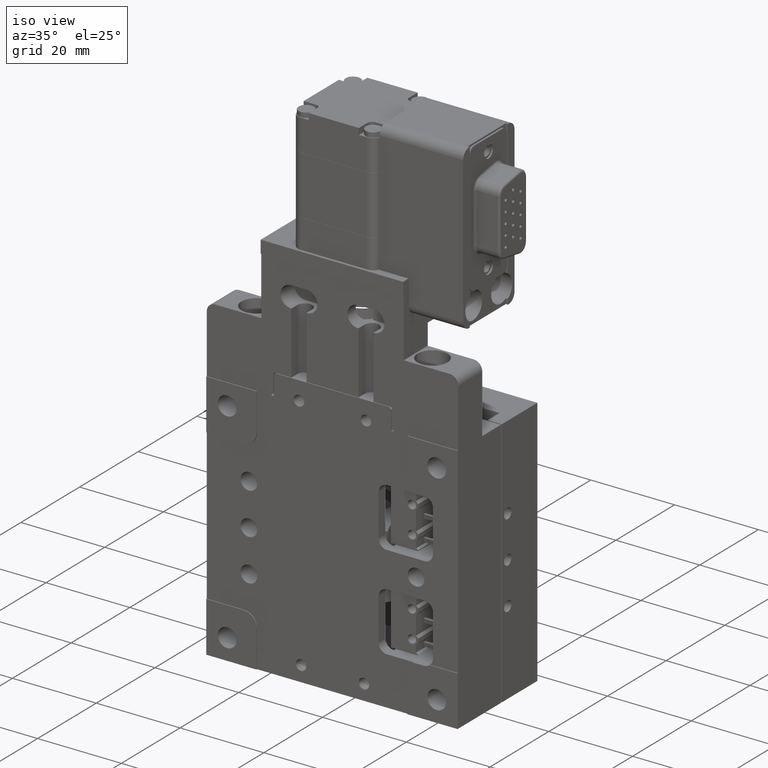
[diagram: clean part render]
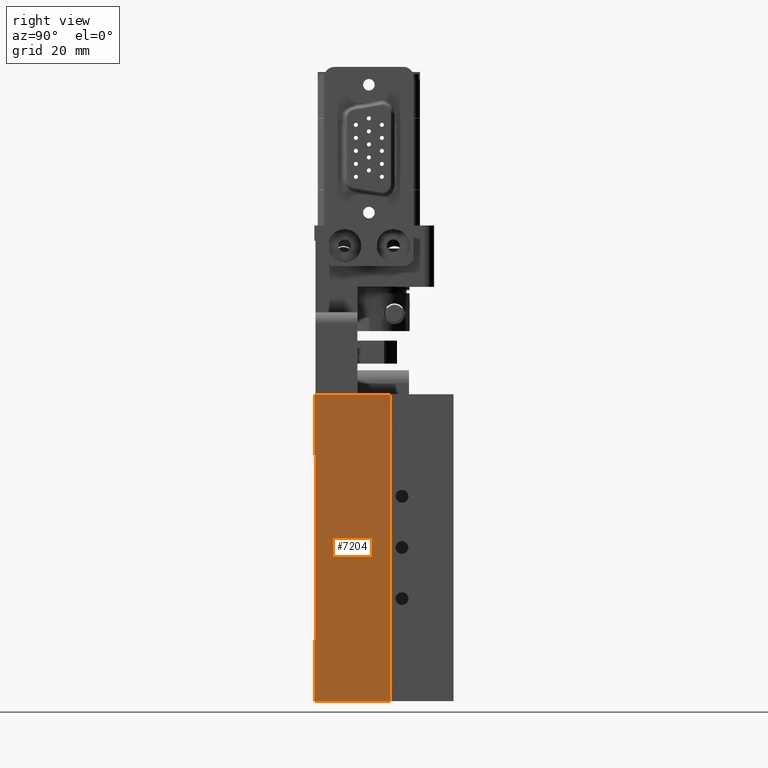
[diagram: tour spotlight — one face highlighted and labeled with its STEP entity id]
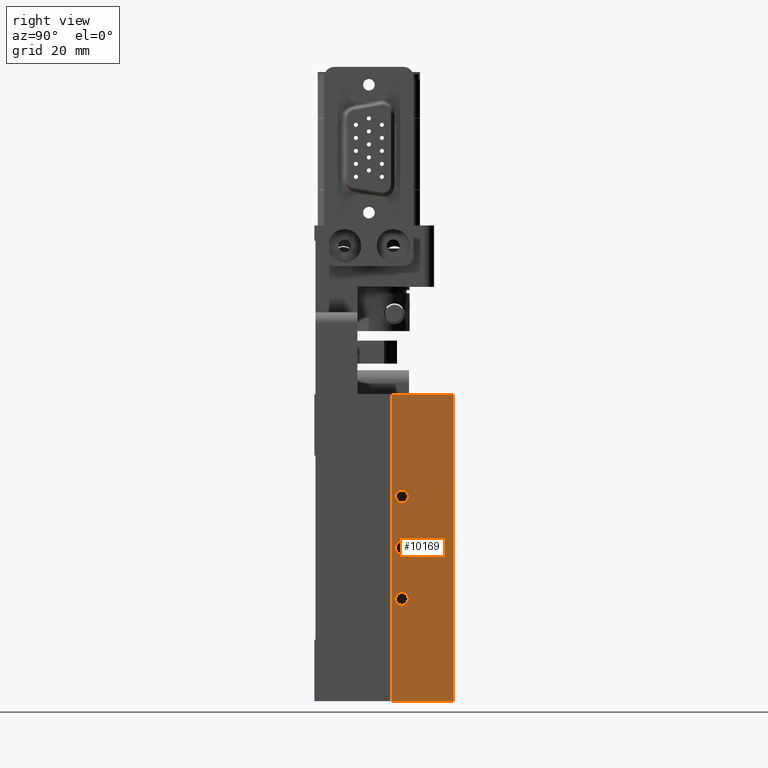
[diagram: tour spotlight — one face highlighted and labeled with its STEP entity id]
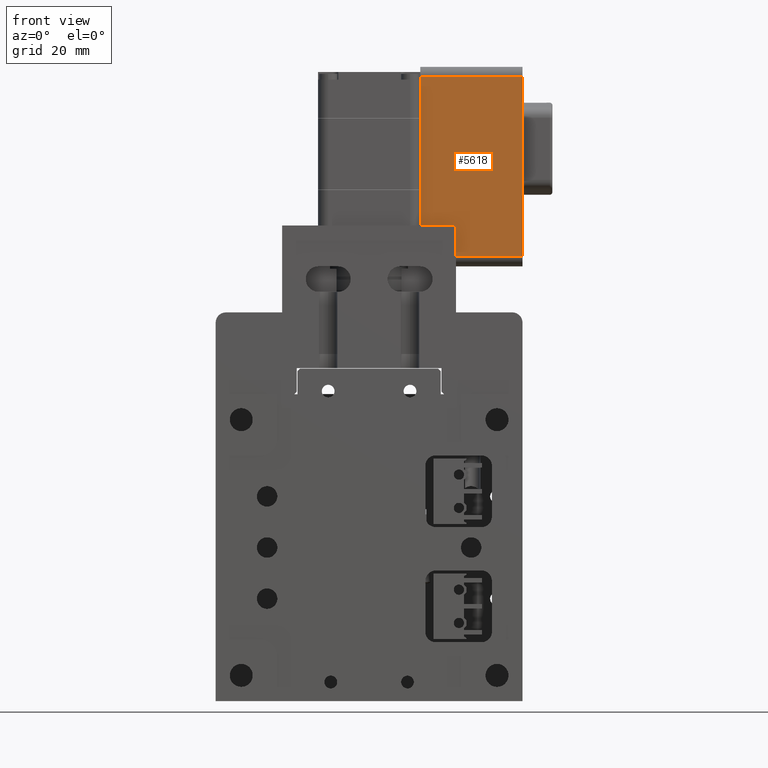
[diagram: tour spotlight — one face highlighted and labeled with its STEP entity id]
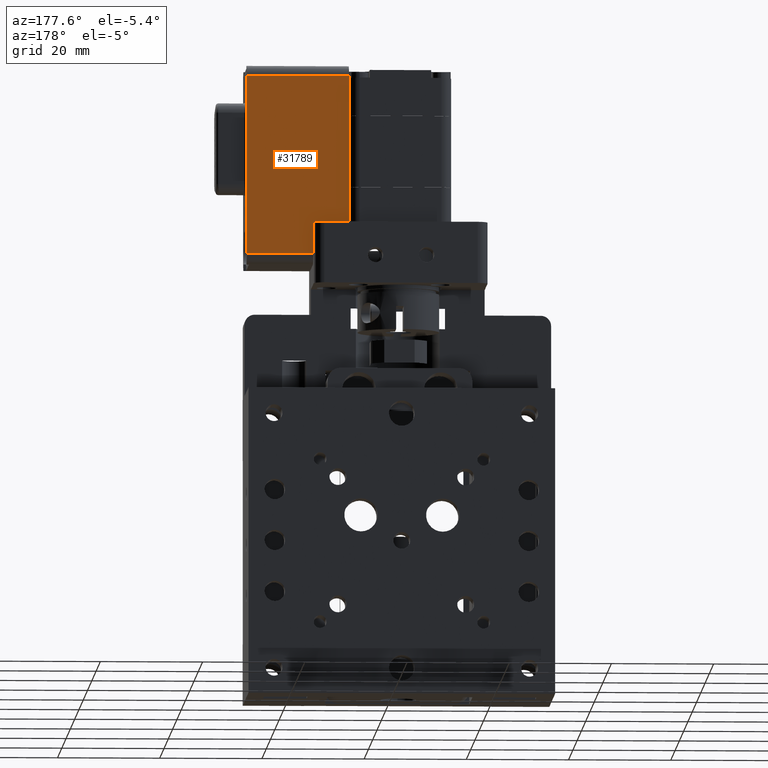
[diagram: tour spotlight — one face highlighted and labeled with its STEP entity id]
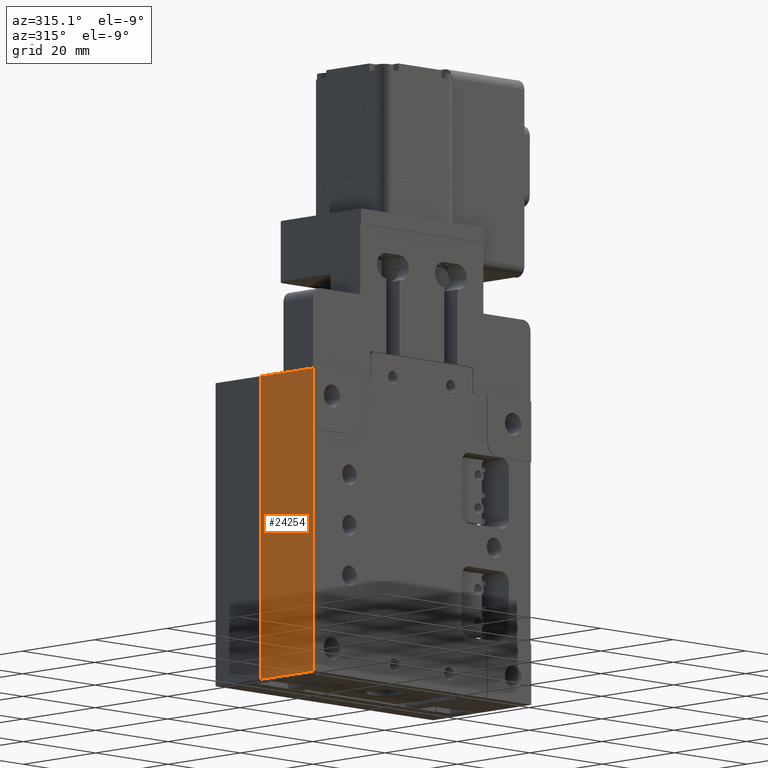
[diagram: tour spotlight — one face highlighted and labeled with its STEP entity id]
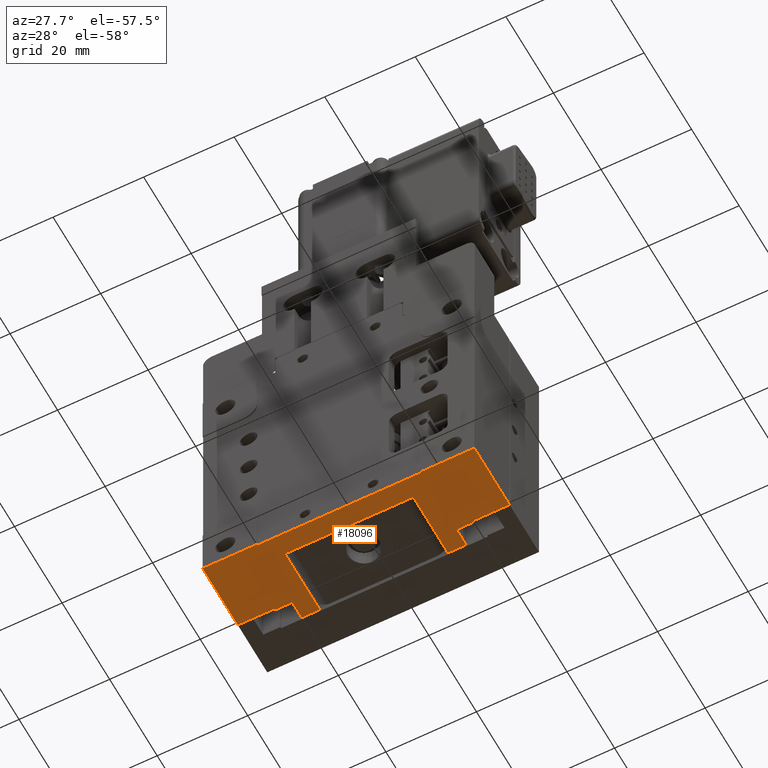
[diagram: tour spotlight — one face highlighted and labeled with its STEP entity id]
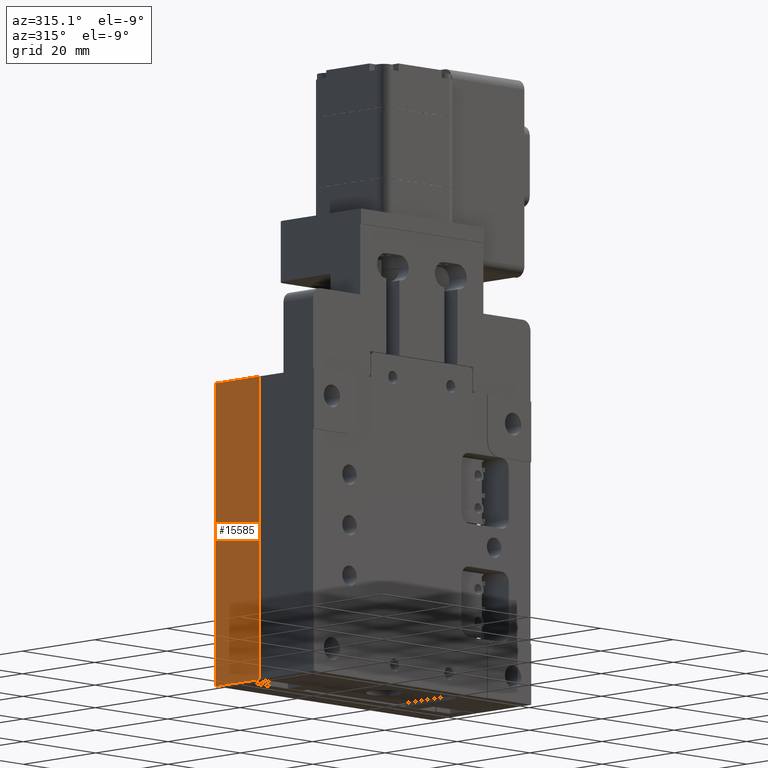
[diagram: tour spotlight — one face highlighted and labeled with its STEP entity id]
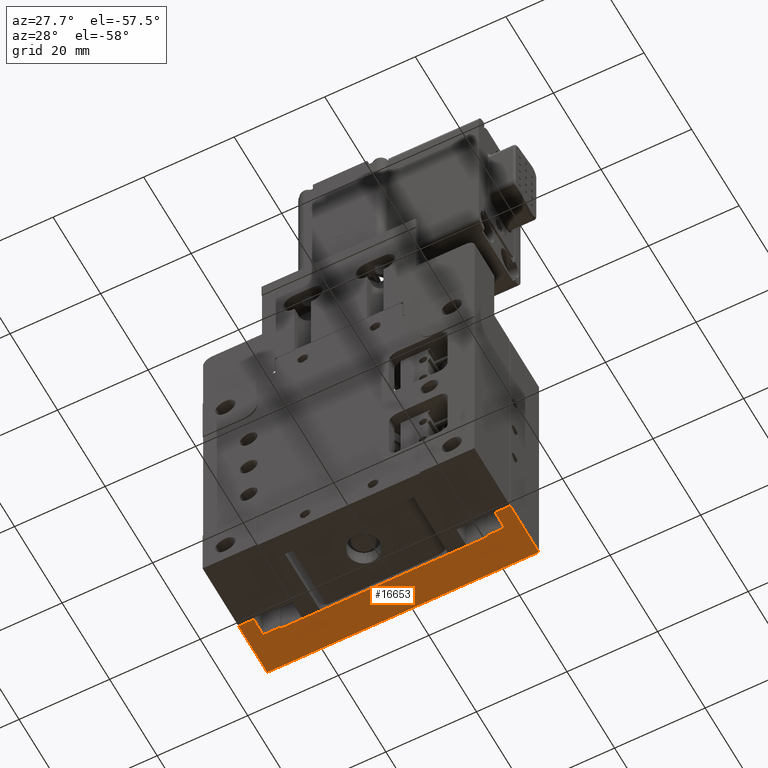
[diagram: tour spotlight — one face highlighted and labeled with its STEP entity id]
A machine part: a face-by-face anatomy tour. The part has 585 B-rep faces; the first image is the clean iso view, then the 8 largest visible faces are spotlighted one at a time (largest first), each with its STEP entity span.

Face 1 — right view, entity #7204. In plain terms, the highlighted planar face has unit normal (1, 0, 0).
Definition (entity closure, byte-faithful):
#538 = DIRECTION ( 'NONE',  ( 0.0000000000000000000, 1.000000000000000000, 0.0000000000000000000 ) ) ;
#632 = ORIENTED_EDGE ( 'NONE', *, *, #18530, .F. ) ;
#803 = VECTOR ( 'NONE', #4422, 1000.000000000000000 ) ;
#1638 = CARTESIAN_POINT ( 'NONE',  ( 27.40828040119247400, -13.09818754598603800, 32.50000000000000000 ) ) ;
#2045 = CARTESIAN_POINT ( 'NONE',  ( 27.40828040119247400, -13.09818754598603800, 32.50000000000000000 ) ) ;
#2612 = LINE ( 'NONE', #4799, #8625 ) ;
#3366 = ORIENTED_EDGE ( 'NONE', *, *, #3619, .F. ) ;
#3387 = EDGE_CURVE ( 'NONE', #16453, #28021, #23479, .T. ) ;
#3595 = ORIENTED_EDGE ( 'NONE', *, *, #3387, .F. ) ;
#3619 = EDGE_CURVE ( 'NONE', #28021, #26516, #2612, .T. ) ;
#4179 = DIRECTION ( 'NONE',  ( 0.0000000000000000000, 0.0000000000000000000, -1.000000000000000000 ) ) ;
#4422 = DIRECTION ( 'NONE',  ( 0.0000000000000000000, 1.000000000000000000, 0.0000000000000000000 ) ) ;
#4501 = CARTESIAN_POINT ( 'NONE',  ( 27.40828040119247400, -12.89818754598603000, 37.50000000000000000 ) ) ;
#4668 = VECTOR ( 'NONE', #538, 1000.000000000000000 ) ;
#4799 = CARTESIAN_POINT ( 'NONE',  ( 27.40828040119247400, 1.701812454013962300, 92.50000000000000000 ) ) ;
#6691 = PLANE ( 'NONE',  #21956 ) ;
#6788 = VECTOR ( 'NONE', #27593, 1000.000000000000000 ) ;
#6960 = VECTOR ( 'NONE', #23689, 1000.000000000000000 ) ;
#7204 = ADVANCED_FACE ( 'NONE', ( #21286 ), #6691, .T. ) ;
#7298 = VERTEX_POINT ( 'NONE', #19895 ) ;
#8625 = VECTOR ( 'NONE', #32877, 1000.000000000000000 ) ;
#9143 = VERTEX_POINT ( 'NONE', #27569 ) ;
#9268 = CARTESIAN_POINT ( 'NONE',  ( 27.40828040119247400, -12.89818754598603200, 44.50000000000000700 ) ) ;
#9327 = CARTESIAN_POINT ( 'NONE',  ( 27.40828040119247400, -13.09818754598603800, 32.50000000000000000 ) ) ;
#10098 = EDGE_CURVE ( 'NONE', #23176, #9143, #28557, .T. ) ;
#10319 = VERTEX_POINT ( 'NONE', #23371 ) ;
#10558 = EDGE_LOOP ( 'NONE', ( #25145, #3366, #3595, #632, #17497, #19025, #25872, #17710 ) ) ;
#13376 = CARTESIAN_POINT ( 'NONE',  ( 27.40828040119247400, -13.09818754598603800, 92.50000000000000000 ) ) ;
#13620 = LINE ( 'NONE', #4501, #6788 ) ;
#13788 = LINE ( 'NONE', #16039, #6960 ) ;
#15379 = EDGE_CURVE ( 'NONE', #32188, #9143, #16866, .T. ) ;
#16039 = CARTESIAN_POINT ( 'NONE',  ( 27.40828040119247400, 4.072375202491112000, 80.50000000000000000 ) ) ;
#16453 = VERTEX_POINT ( 'NONE', #22562 ) ;
#16618 = DIRECTION ( 'NONE',  ( 0.0000000000000000000, -1.000000000000000000, 0.0000000000000000000 ) ) ;
#16866 = LINE ( 'NONE', #26886, #28855 ) ;
#17033 = EDGE_CURVE ( 'NONE', #23176, #26516, #28090, .T. ) ;
#17497 = ORIENTED_EDGE ( 'NONE', *, *, #26078, .F. ) ;
#17658 = EDGE_CURVE ( 'NONE', #32188, #7298, #13620, .T. ) ;
#17710 = ORIENTED_EDGE ( 'NONE', *, *, #10098, .F. ) ;
#18530 = EDGE_CURVE ( 'NONE', #10319, #16453, #31491, .T. ) ;
#19025 = ORIENTED_EDGE ( 'NONE', *, *, #17658, .F. ) ;
#19572 = DIRECTION ( 'NONE',  ( 1.000000000000000000, 0.0000000000000000000, 0.0000000000000000000 ) ) ;
#19895 = CARTESIAN_POINT ( 'NONE',  ( 27.40828040119247400, -12.89818754598603000, 80.49999999999998600 ) ) ;
#20936 = VECTOR ( 'NONE', #27159, 1000.000000000000000 ) ;
#21286 = FACE_OUTER_BOUND ( 'NONE', #10558, .T. ) ;
#21956 = AXIS2_PLACEMENT_3D ( 'NONE', #1638, #19572, #4179 ) ;
#22517 = DIRECTION ( 'NONE',  ( 0.0000000000000000000, 0.0000000000000000000, 1.000000000000000000 ) ) ;
#22562 = CARTESIAN_POINT ( 'NONE',  ( 27.40828040119247400, -13.09818754598603800, 92.50000000000000000 ) ) ;
#23176 = VERTEX_POINT ( 'NONE', #9327 ) ;
#23371 = CARTESIAN_POINT ( 'NONE',  ( 27.40828040119247400, -13.09818754598602900, 80.50000000000000000 ) ) ;
#23479 = LINE ( 'NONE', #13376, #4668 ) ;
#23689 = DIRECTION ( 'NONE',  ( 0.0000000000000000000, -1.000000000000000000, 0.0000000000000000000 ) ) ;
#23876 = VECTOR ( 'NONE', #22517, 1000.000000000000000 ) ;
#24590 = CARTESIAN_POINT ( 'NONE',  ( 27.40828040119247400, -13.09818754598603800, 32.50000000000000000 ) ) ;
#25145 = ORIENTED_EDGE ( 'NONE', *, *, #17033, .T. ) ;
#25215 = CARTESIAN_POINT ( 'NONE',  ( 27.40828040119247400, 1.701812454013962300, 32.50000000000000000 ) ) ;
#25872 = ORIENTED_EDGE ( 'NONE', *, *, #15379, .T. ) ;
#26078 = EDGE_CURVE ( 'NONE', #7298, #10319, #13788, .T. ) ;
#26516 = VERTEX_POINT ( 'NONE', #25215 ) ;
#26886 = CARTESIAN_POINT ( 'NONE',  ( 27.40828040119247400, 4.072375202491112000, 44.50000000000000000 ) ) ;
#27159 = DIRECTION ( 'NONE',  ( 0.0000000000000000000, 0.0000000000000000000, 1.000000000000000000 ) ) ;
#27204 = CARTESIAN_POINT ( 'NONE',  ( 27.40828040119247400, 1.701812454013962300, 92.50000000000000000 ) ) ;
#27569 = CARTESIAN_POINT ( 'NONE',  ( 27.40828040119247400, -13.09818754598602900, 44.50000000000000000 ) ) ;
#27593 = DIRECTION ( 'NONE',  ( 0.0000000000000000000, 0.0000000000000000000, 1.000000000000000000 ) ) ;
#28021 = VERTEX_POINT ( 'NONE', #27204 ) ;
#28090 = LINE ( 'NONE', #29970, #803 ) ;
#28557 = LINE ( 'NONE', #24590, #20936 ) ;
#28855 = VECTOR ( 'NONE', #16618, 1000.000000000000000 ) ;
#29970 = CARTESIAN_POINT ( 'NONE',  ( 27.40828040119247400, -13.09818754598603800, 32.50000000000000000 ) ) ;
#31491 = LINE ( 'NONE', #2045, #23876 ) ;
#32188 = VERTEX_POINT ( 'NONE', #9268 ) ;
#32877 = DIRECTION ( 'NONE',  ( 0.0000000000000000000, 0.0000000000000000000, -1.000000000000000000 ) ) ;

Face 2 — right view, entity #10169. In plain terms, the highlighted planar face has unit normal (-1, 0, 0).
Definition (entity closure, byte-faithful):
#205 = ORIENTED_EDGE ( 'NONE', *, *, #20346, .T. ) ;
#428 = DIRECTION ( 'NONE',  ( 0.0000000000000000000, 0.0000000000000000000, -1.000000000000000000 ) ) ;
#476 = FACE_BOUND ( 'NONE', #27598, .T. ) ;
#534 = CARTESIAN_POINT ( 'NONE',  ( 27.40828040119246000, 4.001812454013947500, 73.74999999999998600 ) ) ;
#548 = CARTESIAN_POINT ( 'NONE',  ( 27.40828040119246000, 2.001812454013948400, 92.50000000000000000 ) ) ;
#1124 = EDGE_CURVE ( 'NONE', #13133, #12898, #22808, .T. ) ;
#1490 = VECTOR ( 'NONE', #5728, 1000.000000000000000 ) ;
#1589 = CARTESIAN_POINT ( 'NONE',  ( 27.40828040119246000, 2.001812454013948400, 92.50000000000000000 ) ) ;
#2163 = CARTESIAN_POINT ( 'NONE',  ( 27.40828040119246000, 4.001812454013947500, 71.24999999999998600 ) ) ;
#2740 = EDGE_LOOP ( 'NONE', ( #18844, #205, #22265, #11633 ) ) ;
#3417 = AXIS2_PLACEMENT_3D ( 'NONE', #24924, #9612, #27487 ) ;
#3598 = CARTESIAN_POINT ( 'NONE',  ( 27.40828040119246000, 4.001812454013948400, 62.49999999999998600 ) ) ;
#3754 = CARTESIAN_POINT ( 'NONE',  ( 27.40828040119246000, 2.001812454013948400, 32.49999999999999300 ) ) ;
#3892 = ORIENTED_EDGE ( 'NONE', *, *, #15049, .F. ) ;
#4721 = CARTESIAN_POINT ( 'NONE',  ( 27.40828040119247100, 14.10181245401396100, 92.50000000000000000 ) ) ;
#5329 = DIRECTION ( 'NONE',  ( 1.000000000000000000, -0.0000000000000000000, -0.0000000000000000000 ) ) ;
#5728 = DIRECTION ( 'NONE',  ( 8.601934591620520800E-016, 1.000000000000000000, 0.0000000000000000000 ) ) ;
#6190 = DIRECTION ( 'NONE',  ( 0.0000000000000000000, 0.0000000000000000000, -1.000000000000000000 ) ) ;
#6377 = CARTESIAN_POINT ( 'NONE',  ( 27.40828040119246000, 4.001812454013947500, 72.49999999999998600 ) ) ;
#7620 = CIRCLE ( 'NONE', #10065, 1.250000000000001100 ) ;
#7886 = CIRCLE ( 'NONE', #30964, 1.250000000000001100 ) ;
#8542 = VERTEX_POINT ( 'NONE', #17129 ) ;
#8943 = DIRECTION ( 'NONE',  ( 0.0000000000000000000, 0.0000000000000000000, -1.000000000000000000 ) ) ;
#9612 = DIRECTION ( 'NONE',  ( -1.000000000000000000, 8.601934591620521700E-016, 0.0000000000000000000 ) ) ;
#9615 = VECTOR ( 'NONE', #21796, 1000.000000000000000 ) ;
#10065 = AXIS2_PLACEMENT_3D ( 'NONE', #14388, #32234, #16921 ) ;
#10169 = ADVANCED_FACE ( 'NONE', ( #32941, #26161, #476, #21741 ), #27372, .F. ) ;
#10388 = CIRCLE ( 'NONE', #18199, 1.250000000000001100 ) ;
#11546 = EDGE_CURVE ( 'NONE', #8542, #17245, #30369, .T. ) ;
#11633 = ORIENTED_EDGE ( 'NONE', *, *, #21281, .F. ) ;
#11757 = VECTOR ( 'NONE', #23618, 1000.000000000000000 ) ;
#12163 = ORIENTED_EDGE ( 'NONE', *, *, #20301, .F. ) ;
#12898 = VERTEX_POINT ( 'NONE', #2163 ) ;
#13048 = ORIENTED_EDGE ( 'NONE', *, *, #1124, .F. ) ;
#13133 = VERTEX_POINT ( 'NONE', #534 ) ;
#13341 = ORIENTED_EDGE ( 'NONE', *, *, #18346, .F. ) ;
#13468 = ORIENTED_EDGE ( 'NONE', *, *, #27320, .F. ) ;
#13740 = DIRECTION ( 'NONE',  ( 1.000000000000000000, -0.0000000000000000000, -0.0000000000000000000 ) ) ;
#14388 = CARTESIAN_POINT ( 'NONE',  ( 27.40828040119246000, 4.001812454013950100, 52.49999999999998600 ) ) ;
#15049 = EDGE_CURVE ( 'NONE', #27123, #15334, #7620, .T. ) ;
#15334 = VERTEX_POINT ( 'NONE', #15604 ) ;
#15374 = LINE ( 'NONE', #1589, #28921 ) ;
#15551 = AXIS2_PLACEMENT_3D ( 'NONE', #3598, #21530, #6190 ) ;
#15604 = CARTESIAN_POINT ( 'NONE',  ( 27.40828040119246000, 4.001812454013950100, 53.74999999999998600 ) ) ;
#15748 = AXIS2_PLACEMENT_3D ( 'NONE', #29019, #13740, #31612 ) ;
#15834 = DIRECTION ( 'NONE',  ( 1.000000000000000000, -0.0000000000000000000, -0.0000000000000000000 ) ) ;
#15956 = AXIS2_PLACEMENT_3D ( 'NONE', #20668, #5329, #23245 ) ;
#16235 = CARTESIAN_POINT ( 'NONE',  ( 27.40828040119247100, 14.10181245401396100, 32.49999999999999300 ) ) ;
#16242 = VERTEX_POINT ( 'NONE', #16235 ) ;
#16921 = DIRECTION ( 'NONE',  ( 0.0000000000000000000, 0.0000000000000000000, -1.000000000000000000 ) ) ;
#17129 = CARTESIAN_POINT ( 'NONE',  ( 27.40828040119246000, 4.001812454013948400, 63.74999999999998600 ) ) ;
#17245 = VERTEX_POINT ( 'NONE', #18009 ) ;
#17871 = VERTEX_POINT ( 'NONE', #23884 ) ;
#18009 = CARTESIAN_POINT ( 'NONE',  ( 27.40828040119246000, 4.001812454013948400, 61.24999999999998600 ) ) ;
#18199 = AXIS2_PLACEMENT_3D ( 'NONE', #6377, #24291, #8943 ) ;
#18346 = EDGE_CURVE ( 'NONE', #15334, #27123, #7886, .T. ) ;
#18844 = ORIENTED_EDGE ( 'NONE', *, *, #19910, .T. ) ;
#19007 = CIRCLE ( 'NONE', #15748, 1.250000000000001100 ) ;
#19910 = EDGE_CURVE ( 'NONE', #17871, #29716, #15374, .T. ) ;
#20301 = EDGE_CURVE ( 'NONE', #12898, #13133, #10388, .T. ) ;
#20346 = EDGE_CURVE ( 'NONE', #29716, #16242, #30782, .T. ) ;
#20668 = CARTESIAN_POINT ( 'NONE',  ( 27.40828040119246000, 4.001812454013947500, 72.49999999999998600 ) ) ;
#21281 = EDGE_CURVE ( 'NONE', #17871, #31397, #28715, .T. ) ;
#21530 = DIRECTION ( 'NONE',  ( 1.000000000000000000, -0.0000000000000000000, -0.0000000000000000000 ) ) ;
#21741 = FACE_OUTER_BOUND ( 'NONE', #2740, .T. ) ;
#21796 = DIRECTION ( 'NONE',  ( 8.601934591620520800E-016, 1.000000000000000000, 0.0000000000000000000 ) ) ;
#22265 = ORIENTED_EDGE ( 'NONE', *, *, #30626, .F. ) ;
#22808 = CIRCLE ( 'NONE', #15956, 1.250000000000001100 ) ;
#23245 = DIRECTION ( 'NONE',  ( 0.0000000000000000000, 0.0000000000000000000, -1.000000000000000000 ) ) ;
#23618 = DIRECTION ( 'NONE',  ( -0.0000000000000000000, -0.0000000000000000000, -1.000000000000000000 ) ) ;
#23884 = CARTESIAN_POINT ( 'NONE',  ( 27.40828040119246000, 2.001812454013948400, 92.50000000000000000 ) ) ;
#24291 = DIRECTION ( 'NONE',  ( 1.000000000000000000, -0.0000000000000000000, -0.0000000000000000000 ) ) ;
#24661 = DIRECTION ( 'NONE',  ( -0.0000000000000000000, -0.0000000000000000000, -1.000000000000000000 ) ) ;
#24842 = EDGE_LOOP ( 'NONE', ( #12163, #13048 ) ) ;
#24924 = CARTESIAN_POINT ( 'NONE',  ( 27.40828040119246000, 2.001812454013948400, 92.50000000000000000 ) ) ;
#26161 = FACE_BOUND ( 'NONE', #24842, .T. ) ;
#27123 = VERTEX_POINT ( 'NONE', #30483 ) ;
#27320 = EDGE_CURVE ( 'NONE', #17245, #8542, #19007, .T. ) ;
#27372 = PLANE ( 'NONE',  #3417 ) ;
#27487 = DIRECTION ( 'NONE',  ( -8.601934591620521700E-016, -1.000000000000000000, 0.0000000000000000000 ) ) ;
#27598 = EDGE_LOOP ( 'NONE', ( #3892, #13341 ) ) ;
#27980 = EDGE_LOOP ( 'NONE', ( #13468, #28573 ) ) ;
#28573 = ORIENTED_EDGE ( 'NONE', *, *, #11546, .F. ) ;
#28715 = LINE ( 'NONE', #548, #1490 ) ;
#28921 = VECTOR ( 'NONE', #24661, 1000.000000000000000 ) ;
#29019 = CARTESIAN_POINT ( 'NONE',  ( 27.40828040119246000, 4.001812454013948400, 62.49999999999998600 ) ) ;
#29716 = VERTEX_POINT ( 'NONE', #29830 ) ;
#29830 = CARTESIAN_POINT ( 'NONE',  ( 27.40828040119246000, 2.001812454013948400, 32.49999999999999300 ) ) ;
#30369 = CIRCLE ( 'NONE', #15551, 1.250000000000001100 ) ;
#30483 = CARTESIAN_POINT ( 'NONE',  ( 27.40828040119246000, 4.001812454013950100, 51.24999999999998600 ) ) ;
#30626 = EDGE_CURVE ( 'NONE', #31397, #16242, #32133, .T. ) ;
#30782 = LINE ( 'NONE', #3754, #9615 ) ;
#30964 = AXIS2_PLACEMENT_3D ( 'NONE', #31124, #15834, #428 ) ;
#31124 = CARTESIAN_POINT ( 'NONE',  ( 27.40828040119246000, 4.001812454013950100, 52.49999999999998600 ) ) ;
#31397 = VERTEX_POINT ( 'NONE', #4721 ) ;
#31465 = CARTESIAN_POINT ( 'NONE',  ( 27.40828040119247100, 14.10181245401396100, 92.50000000000000000 ) ) ;
#31612 = DIRECTION ( 'NONE',  ( 0.0000000000000000000, 0.0000000000000000000, -1.000000000000000000 ) ) ;
#32133 = LINE ( 'NONE', #31465, #11757 ) ;
#32234 = DIRECTION ( 'NONE',  ( 1.000000000000000000, -0.0000000000000000000, -0.0000000000000000000 ) ) ;
#32941 = FACE_BOUND ( 'NONE', #27980, .T. ) ;

Face 3 — front view, entity #5618. In plain terms, the highlighted planar face has unit normal (-0, 1, 0).
Definition (entity closure, byte-faithful):
#103 = EDGE_CURVE ( 'NONE', #18602, #15194, #418, .T. ) ;
#418 = LINE ( 'NONE', #21395, #7289 ) ;
#2158 = ORIENTED_EDGE ( 'NONE', *, *, #3516, .T. ) ;
#3516 = EDGE_CURVE ( 'NONE', #18353, #32628, #13909, .T. ) ;
#3902 = DIRECTION ( 'NONE',  ( 1.000000000000000000, 0.0000000000000000000, -0.0000000000000000000 ) ) ;
#5013 = PLANE ( 'NONE',  #19775 ) ;
#5017 = CARTESIAN_POINT ( 'NONE',  ( 14.40828040119247800, -11.19818754598556200, 125.5000000000000300 ) ) ;
#5618 = ADVANCED_FACE ( 'NONE', ( #18116 ), #5013, .F. ) ;
#6296 = CARTESIAN_POINT ( 'NONE',  ( 27.40828040119247800, -11.19818754598556200, 154.5000000000000300 ) ) ;
#6469 = EDGE_CURVE ( 'NONE', #16862, #15194, #21386, .T. ) ;
#7289 = VECTOR ( 'NONE', #18864, 1000.000000000000000 ) ;
#8426 = CARTESIAN_POINT ( 'NONE',  ( 27.40828040119247800, -11.19818754598556200, 154.5000000000000300 ) ) ;
#8843 = CARTESIAN_POINT ( 'NONE',  ( 14.40828040119247800, -11.19818754598556200, 125.5000000000000300 ) ) ;
#10282 = DIRECTION ( 'NONE',  ( -0.0000000000000000000, 1.000000000000000000, 0.0000000000000000000 ) ) ;
#12600 = CARTESIAN_POINT ( 'NONE',  ( 7.408280401192477900, -11.19818754598556200, 154.5000000000000300 ) ) ;
#13622 = VECTOR ( 'NONE', #13923, 1000.000000000000000 ) ;
#13852 = VECTOR ( 'NONE', #26342, 1000.000000000000000 ) ;
#13909 = LINE ( 'NONE', #24312, #21465 ) ;
#13923 = DIRECTION ( 'NONE',  ( 0.0000000000000000000, 0.0000000000000000000, -1.000000000000000000 ) ) ;
#14643 = VECTOR ( 'NONE', #20377, 1000.000000000000000 ) ;
#15194 = VERTEX_POINT ( 'NONE', #22617 ) ;
#15887 = EDGE_CURVE ( 'NONE', #23068, #32628, #20402, .T. ) ;
#16862 = VERTEX_POINT ( 'NONE', #8843 ) ;
#18116 = FACE_OUTER_BOUND ( 'NONE', #31200, .T. ) ;
#18353 = VERTEX_POINT ( 'NONE', #26011 ) ;
#18602 = VERTEX_POINT ( 'NONE', #12600 ) ;
#18864 = DIRECTION ( 'NONE',  ( 0.0000000000000000000, 0.0000000000000000000, -1.000000000000000000 ) ) ;
#18946 = ORIENTED_EDGE ( 'NONE', *, *, #15887, .F. ) ;
#19775 = AXIS2_PLACEMENT_3D ( 'NONE', #25627, #10282, #28178 ) ;
#19849 = ORIENTED_EDGE ( 'NONE', *, *, #25507, .T. ) ;
#20254 = ORIENTED_EDGE ( 'NONE', *, *, #25694, .F. ) ;
#20377 = DIRECTION ( 'NONE',  ( -1.000000000000000000, -0.0000000000000000000, -0.0000000000000000000 ) ) ;
#20402 = LINE ( 'NONE', #29206, #13622 ) ;
#21386 = LINE ( 'NONE', #5017, #14643 ) ;
#21395 = CARTESIAN_POINT ( 'NONE',  ( 7.408280401192477900, -11.19818754598556200, 156.5000000000000300 ) ) ;
#21401 = CARTESIAN_POINT ( 'NONE',  ( 27.40828040119247800, -11.19818754598556200, 119.5000000000000300 ) ) ;
#21465 = VECTOR ( 'NONE', #3902, 1000.000000000000000 ) ;
#22617 = CARTESIAN_POINT ( 'NONE',  ( 7.408280401192477900, -11.19818754598556200, 125.5000000000000300 ) ) ;
#23068 = VERTEX_POINT ( 'NONE', #6296 ) ;
#24312 = CARTESIAN_POINT ( 'NONE',  ( 27.40828040119247800, -11.19818754598556200, 119.5000000000000300 ) ) ;
#24445 = CARTESIAN_POINT ( 'NONE',  ( 14.40828040119247800, -11.19818754598556200, 125.5000000000000300 ) ) ;
#25507 = EDGE_CURVE ( 'NONE', #23068, #18602, #27429, .T. ) ;
#25627 = CARTESIAN_POINT ( 'NONE',  ( 27.40828040119247800, -11.19818754598556200, 156.5000000000000300 ) ) ;
#25694 = EDGE_CURVE ( 'NONE', #18353, #16862, #32198, .T. ) ;
#26011 = CARTESIAN_POINT ( 'NONE',  ( 14.40828040119247800, -11.19818754598556200, 119.5000000000000300 ) ) ;
#26342 = DIRECTION ( 'NONE',  ( -1.000000000000000000, 0.0000000000000000000, 0.0000000000000000000 ) ) ;
#26809 = ORIENTED_EDGE ( 'NONE', *, *, #103, .T. ) ;
#27429 = LINE ( 'NONE', #8426, #13852 ) ;
#28178 = DIRECTION ( 'NONE',  ( 0.0000000000000000000, -0.0000000000000000000, 1.000000000000000000 ) ) ;
#29206 = CARTESIAN_POINT ( 'NONE',  ( 27.40828040119247800, -11.19818754598556200, 156.5000000000000300 ) ) ;
#31200 = EDGE_LOOP ( 'NONE', ( #26809, #31964, #20254, #2158, #18946, #19849 ) ) ;
#31964 = ORIENTED_EDGE ( 'NONE', *, *, #6469, .F. ) ;
#32132 = DIRECTION ( 'NONE',  ( -0.0000000000000000000, -0.0000000000000000000, 1.000000000000000000 ) ) ;
#32198 = LINE ( 'NONE', #24445, #33003 ) ;
#32628 = VERTEX_POINT ( 'NONE', #21401 ) ;
#33003 = VECTOR ( 'NONE', #32132, 1000.000000000000000 ) ;

Face 4 — auxiliary view, entity #31789. In plain terms, the highlighted planar face has unit normal (0, -1, 0).
Definition (entity closure, byte-faithful):
#1537 = FACE_OUTER_BOUND ( 'NONE', #1571, .T. ) ;
#1571 = EDGE_LOOP ( 'NONE', ( #15517, #25550, #32172, #3737, #16673, #4614 ) ) ;
#2075 = EDGE_CURVE ( 'NONE', #2242, #21025, #23504, .T. ) ;
#2242 = VERTEX_POINT ( 'NONE', #4752 ) ;
#2714 = EDGE_CURVE ( 'NONE', #5915, #31947, #11437, .T. ) ;
#2811 = LINE ( 'NONE', #4365, #14896 ) ;
#3737 = ORIENTED_EDGE ( 'NONE', *, *, #22830, .T. ) ;
#4248 = VECTOR ( 'NONE', #21758, 1000.000000000000000 ) ;
#4253 = VERTEX_POINT ( 'NONE', #22704 ) ;
#4365 = CARTESIAN_POINT ( 'NONE',  ( 14.40828040119247800, 6.301812454014441100, 125.4999999999999700 ) ) ;
#4584 = VECTOR ( 'NONE', #17117, 1000.000000000000000 ) ;
#4614 = ORIENTED_EDGE ( 'NONE', *, *, #9254, .T. ) ;
#4752 = CARTESIAN_POINT ( 'NONE',  ( 27.40828040119247800, 6.301812454014441100, 119.5000000000000300 ) ) ;
#5513 = CARTESIAN_POINT ( 'NONE',  ( 27.40828040119247800, 6.301812454014441100, 154.5000000000000300 ) ) ;
#5690 = CARTESIAN_POINT ( 'NONE',  ( 7.408280401192477900, 6.301812454014441100, 125.4999999999999700 ) ) ;
#5915 = VERTEX_POINT ( 'NONE', #5690 ) ;
#6480 = LINE ( 'NONE', #5513, #13318 ) ;
#8294 = CARTESIAN_POINT ( 'NONE',  ( 14.40828040119247800, 6.301812454014441100, 125.4999999999999700 ) ) ;
#9254 = EDGE_CURVE ( 'NONE', #2242, #4253, #13887, .T. ) ;
#9597 = CARTESIAN_POINT ( 'NONE',  ( 27.40828040119247800, 6.301812454014441100, 154.5000000000000300 ) ) ;
#9643 = DIRECTION ( 'NONE',  ( 0.0000000000000000000, -1.000000000000000000, 0.0000000000000000000 ) ) ;
#10203 = CARTESIAN_POINT ( 'NONE',  ( 27.40828040119247800, 6.301812454014441100, 119.5000000000000300 ) ) ;
#10866 = DIRECTION ( 'NONE',  ( -1.000000000000000000, -0.0000000000000000000, -0.0000000000000000000 ) ) ;
#11437 = LINE ( 'NONE', #27279, #4584 ) ;
#13161 = EDGE_CURVE ( 'NONE', #28677, #5915, #26969, .T. ) ;
#13318 = VECTOR ( 'NONE', #20840, 1000.000000000000000 ) ;
#13396 = VECTOR ( 'NONE', #10866, 1000.000000000000000 ) ;
#13887 = LINE ( 'NONE', #10203, #27467 ) ;
#14697 = PLANE ( 'NONE',  #22963 ) ;
#14782 = CARTESIAN_POINT ( 'NONE',  ( 14.40828040119247800, 6.301812454014441100, 125.4999999999999700 ) ) ;
#14896 = VECTOR ( 'NONE', #24889, 1000.000000000000000 ) ;
#15479 = EDGE_CURVE ( 'NONE', #28677, #4253, #2811, .T. ) ;
#15517 = ORIENTED_EDGE ( 'NONE', *, *, #15479, .F. ) ;
#16673 = ORIENTED_EDGE ( 'NONE', *, *, #2075, .F. ) ;
#17117 = DIRECTION ( 'NONE',  ( -0.0000000000000000000, -0.0000000000000000000, 1.000000000000000000 ) ) ;
#19220 = CARTESIAN_POINT ( 'NONE',  ( 27.40828040119247800, 6.301812454014441100, 156.5000000000000300 ) ) ;
#20840 = DIRECTION ( 'NONE',  ( 1.000000000000000000, -0.0000000000000000000, -0.0000000000000000000 ) ) ;
#21025 = VERTEX_POINT ( 'NONE', #9597 ) ;
#21758 = DIRECTION ( 'NONE',  ( -0.0000000000000000000, -0.0000000000000000000, 1.000000000000000000 ) ) ;
#22704 = CARTESIAN_POINT ( 'NONE',  ( 14.40828040119247800, 6.301812454014441100, 119.5000000000000300 ) ) ;
#22830 = EDGE_CURVE ( 'NONE', #31947, #21025, #6480, .T. ) ;
#22864 = DIRECTION ( 'NONE',  ( -1.000000000000000000, 0.0000000000000000000, 0.0000000000000000000 ) ) ;
#22963 = AXIS2_PLACEMENT_3D ( 'NONE', #24960, #9643, #27518 ) ;
#23504 = LINE ( 'NONE', #19220, #4248 ) ;
#24889 = DIRECTION ( 'NONE',  ( 0.0000000000000000000, 0.0000000000000000000, -1.000000000000000000 ) ) ;
#24960 = CARTESIAN_POINT ( 'NONE',  ( 27.40828040119247800, 6.301812454014441100, 156.5000000000000300 ) ) ;
#25296 = CARTESIAN_POINT ( 'NONE',  ( 7.408280401192477900, 6.301812454014441100, 154.5000000000000300 ) ) ;
#25550 = ORIENTED_EDGE ( 'NONE', *, *, #13161, .T. ) ;
#26969 = LINE ( 'NONE', #8294, #13396 ) ;
#27279 = CARTESIAN_POINT ( 'NONE',  ( 7.408280401192477900, 6.301812454014441100, 156.5000000000000300 ) ) ;
#27467 = VECTOR ( 'NONE', #22864, 1000.000000000000000 ) ;
#27518 = DIRECTION ( 'NONE',  ( 0.0000000000000000000, -0.0000000000000000000, -1.000000000000000000 ) ) ;
#28677 = VERTEX_POINT ( 'NONE', #14782 ) ;
#31789 = ADVANCED_FACE ( 'NONE', ( #1537 ), #14697, .F. ) ;
#31947 = VERTEX_POINT ( 'NONE', #25296 ) ;
#32172 = ORIENTED_EDGE ( 'NONE', *, *, #2714, .T. ) ;

Face 5 — auxiliary view, entity #24254. In plain terms, the highlighted planar face has unit normal (-1, 0, 0).
Definition (entity closure, byte-faithful):
#33 = DIRECTION ( 'NONE',  ( 0.0000000000000000000, 0.0000000000000000000, 1.000000000000000000 ) ) ;
#336 = CARTESIAN_POINT ( 'NONE',  ( -32.59171959880752200, -13.09818754598602900, 44.50000000000000000 ) ) ;
#1367 = VERTEX_POINT ( 'NONE', #9065 ) ;
#1717 = ORIENTED_EDGE ( 'NONE', *, *, #9905, .F. ) ;
#1802 = CARTESIAN_POINT ( 'NONE',  ( -32.59171959880752200, -13.09818754598603800, 32.50000000000000000 ) ) ;
#2388 = VECTOR ( 'NONE', #16704, 1000.000000000000000 ) ;
#2537 = LINE ( 'NONE', #10830, #8541 ) ;
#4314 = EDGE_CURVE ( 'NONE', #1367, #32732, #18966, .T. ) ;
#4350 = DIRECTION ( 'NONE',  ( 0.0000000000000000000, 0.0000000000000000000, 1.000000000000000000 ) ) ;
#5307 = VECTOR ( 'NONE', #33, 1000.000000000000000 ) ;
#5486 = CARTESIAN_POINT ( 'NONE',  ( -32.59171959880752200, -12.89818754598603200, 80.50000000000000000 ) ) ;
#5900 = ORIENTED_EDGE ( 'NONE', *, *, #13843, .F. ) ;
#6402 = VERTEX_POINT ( 'NONE', #7062 ) ;
#7062 = CARTESIAN_POINT ( 'NONE',  ( -32.59171959880752200, -12.89818754598603200, 44.50000000000000000 ) ) ;
#7417 = DIRECTION ( 'NONE',  ( 0.0000000000000000000, 0.0000000000000000000, 1.000000000000000000 ) ) ;
#7792 = CARTESIAN_POINT ( 'NONE',  ( -32.59171959880752200, -13.09818754598602900, 80.50000000000000000 ) ) ;
#8541 = VECTOR ( 'NONE', #16016, 1000.000000000000000 ) ;
#9065 = CARTESIAN_POINT ( 'NONE',  ( -32.59171959880752200, 1.701812454013962300, 32.50000000000000000 ) ) ;
#9129 = AXIS2_PLACEMENT_3D ( 'NONE', #1802, #19739, #4350 ) ;
#9220 = VECTOR ( 'NONE', #29082, 1000.000000000000000 ) ;
#9665 = CARTESIAN_POINT ( 'NONE',  ( -32.59171959880752200, -13.09818754598603800, 92.50000000000000000 ) ) ;
#9837 = VERTEX_POINT ( 'NONE', #7792 ) ;
#9905 = EDGE_CURVE ( 'NONE', #31514, #6402, #2537, .T. ) ;
#10830 = CARTESIAN_POINT ( 'NONE',  ( -32.59171959880751500, -12.89818754598603000, 37.50000000000000000 ) ) ;
#10998 = VECTOR ( 'NONE', #14391, 1000.000000000000000 ) ;
#11808 = CARTESIAN_POINT ( 'NONE',  ( -32.59171959880752200, 4.072375202491112000, 44.50000000000000000 ) ) ;
#12332 = CARTESIAN_POINT ( 'NONE',  ( -32.59171959880752200, -13.09818754598603800, 92.50000000000000000 ) ) ;
#13789 = CARTESIAN_POINT ( 'NONE',  ( -32.59171959880752200, -13.09818754598603800, 32.50000000000000000 ) ) ;
#13843 = EDGE_CURVE ( 'NONE', #32732, #30877, #18485, .T. ) ;
#14174 = ORIENTED_EDGE ( 'NONE', *, *, #29140, .T. ) ;
#14391 = DIRECTION ( 'NONE',  ( 0.0000000000000000000, -1.000000000000000000, 0.0000000000000000000 ) ) ;
#14508 = CARTESIAN_POINT ( 'NONE',  ( -32.59171959880752200, 1.701812454013962300, 92.50000000000000000 ) ) ;
#15644 = EDGE_CURVE ( 'NONE', #26126, #19622, #28823, .T. ) ;
#16016 = DIRECTION ( 'NONE',  ( -0.0000000000000000000, -0.0000000000000000000, -1.000000000000000000 ) ) ;
#16046 = LINE ( 'NONE', #28963, #9220 ) ;
#16704 = DIRECTION ( 'NONE',  ( 0.0000000000000000000, 0.0000000000000000000, 1.000000000000000000 ) ) ;
#17109 = DIRECTION ( 'NONE',  ( 0.0000000000000000000, -1.000000000000000000, 0.0000000000000000000 ) ) ;
#17424 = DIRECTION ( 'NONE',  ( -0.0000000000000000000, -1.000000000000000000, -0.0000000000000000000 ) ) ;
#17781 = CARTESIAN_POINT ( 'NONE',  ( -32.59171959880752200, 1.701812454013962300, 32.50000000000000000 ) ) ;
#18485 = LINE ( 'NONE', #12332, #24481 ) ;
#18614 = LINE ( 'NONE', #11808, #10998 ) ;
#18966 = LINE ( 'NONE', #17781, #5307 ) ;
#19485 = ORIENTED_EDGE ( 'NONE', *, *, #15644, .T. ) ;
#19589 = CARTESIAN_POINT ( 'NONE',  ( -32.59171959880752200, 4.072375202491112000, 80.50000000000000000 ) ) ;
#19622 = VERTEX_POINT ( 'NONE', #336 ) ;
#19718 = VECTOR ( 'NONE', #17109, 1000.000000000000000 ) ;
#19739 = DIRECTION ( 'NONE',  ( -1.000000000000000000, 0.0000000000000000000, 0.0000000000000000000 ) ) ;
#20248 = EDGE_CURVE ( 'NONE', #1367, #26126, #16046, .T. ) ;
#22607 = ORIENTED_EDGE ( 'NONE', *, *, #23680, .T. ) ;
#22866 = CARTESIAN_POINT ( 'NONE',  ( -32.59171959880752200, -13.09818754598603800, 32.50000000000000000 ) ) ;
#23351 = ORIENTED_EDGE ( 'NONE', *, *, #25765, .F. ) ;
#23680 = EDGE_CURVE ( 'NONE', #31514, #9837, #26483, .T. ) ;
#23774 = EDGE_LOOP ( 'NONE', ( #5900, #25815, #27454, #19485, #23351, #1717, #22607, #14174 ) ) ;
#24254 = ADVANCED_FACE ( 'NONE', ( #33192 ), #24770, .T. ) ;
#24481 = VECTOR ( 'NONE', #17424, 1000.000000000000000 ) ;
#24770 = PLANE ( 'NONE',  #9129 ) ;
#25765 = EDGE_CURVE ( 'NONE', #6402, #19622, #18614, .T. ) ;
#25815 = ORIENTED_EDGE ( 'NONE', *, *, #4314, .F. ) ;
#26126 = VERTEX_POINT ( 'NONE', #13789 ) ;
#26483 = LINE ( 'NONE', #19589, #19718 ) ;
#27454 = ORIENTED_EDGE ( 'NONE', *, *, #20248, .T. ) ;
#28047 = VECTOR ( 'NONE', #7417, 1000.000000000000000 ) ;
#28789 = LINE ( 'NONE', #32023, #2388 ) ;
#28823 = LINE ( 'NONE', #22866, #28047 ) ;
#28963 = CARTESIAN_POINT ( 'NONE',  ( -32.59171959880752200, -13.09818754598603800, 32.50000000000000000 ) ) ;
#29082 = DIRECTION ( 'NONE',  ( -0.0000000000000000000, -1.000000000000000000, -0.0000000000000000000 ) ) ;
#29140 = EDGE_CURVE ( 'NONE', #9837, #30877, #28789, .T. ) ;
#30877 = VERTEX_POINT ( 'NONE', #9665 ) ;
#31514 = VERTEX_POINT ( 'NONE', #5486 ) ;
#32023 = CARTESIAN_POINT ( 'NONE',  ( -32.59171959880752200, -13.09818754598603800, 32.50000000000000000 ) ) ;
#32732 = VERTEX_POINT ( 'NONE', #14508 ) ;
#33192 = FACE_OUTER_BOUND ( 'NONE', #23774, .T. ) ;

Face 6 — auxiliary view, entity #18096. In plain terms, the highlighted planar face has unit normal (0, 0, 1).
Definition (entity closure, byte-faithful):
#312 = VECTOR ( 'NONE', #4434, 1000.000000000000000 ) ;
#320 = CARTESIAN_POINT ( 'NONE',  ( -24.59171959880752200, 1.701812454013962300, 32.50000000000000000 ) ) ;
#530 = DIRECTION ( 'NONE',  ( 1.000000000000000000, -0.0000000000000000000, -0.0000000000000000000 ) ) ;
#803 = VECTOR ( 'NONE', #4422, 1000.000000000000000 ) ;
#1215 = ORIENTED_EDGE ( 'NONE', *, *, #27236, .F. ) ;
#1249 = VECTOR ( 'NONE', #5180, 1000.000000000000000 ) ;
#1367 = VERTEX_POINT ( 'NONE', #9065 ) ;
#2010 = CARTESIAN_POINT ( 'NONE',  ( 15.55828040119247600, 2.001812454013962100, 32.50000000000000000 ) ) ;
#2079 = ORIENTED_EDGE ( 'NONE', *, *, #25923, .F. ) ;
#2118 = LINE ( 'NONE', #32878, #14984 ) ;
#2597 = CARTESIAN_POINT ( 'NONE',  ( 19.40828040119247400, 2.001812454013962100, 32.50000000000000000 ) ) ;
#2790 = CARTESIAN_POINT ( 'NONE',  ( -20.74171959880752400, 6.001812454013962600, 32.50000000000000000 ) ) ;
#3344 = EDGE_CURVE ( 'NONE', #28293, #1367, #17519, .T. ) ;
#3381 = LINE ( 'NONE', #21245, #23022 ) ;
#4418 = LINE ( 'NONE', #7972, #17273 ) ;
#4422 = DIRECTION ( 'NONE',  ( 0.0000000000000000000, 1.000000000000000000, 0.0000000000000000000 ) ) ;
#4434 = DIRECTION ( 'NONE',  ( 0.0000000000000000000, 1.000000000000000000, 0.0000000000000000000 ) ) ;
#4855 = VERTEX_POINT ( 'NONE', #31169 ) ;
#4981 = VECTOR ( 'NONE', #15866, 1000.000000000000000 ) ;
#5001 = VECTOR ( 'NONE', #6479, 1000.000000000000000 ) ;
#5180 = DIRECTION ( 'NONE',  ( -1.000000000000000000, 0.0000000000000000000, 0.0000000000000000000 ) ) ;
#5514 = LINE ( 'NONE', #27589, #12394 ) ;
#5967 = EDGE_CURVE ( 'NONE', #8526, #28293, #20452, .T. ) ;
#6089 = ORIENTED_EDGE ( 'NONE', *, *, #16657, .F. ) ;
#6479 = DIRECTION ( 'NONE',  ( -1.000000000000000000, -0.0000000000000000000, -0.0000000000000000000 ) ) ;
#6599 = ORIENTED_EDGE ( 'NONE', *, *, #18112, .F. ) ;
#6901 = ORIENTED_EDGE ( 'NONE', *, *, #16863, .F. ) ;
#7112 = DIRECTION ( 'NONE',  ( 0.0000000000000000000, 0.0000000000000000000, 1.000000000000000000 ) ) ;
#7221 = ORIENTED_EDGE ( 'NONE', *, *, #9476, .F. ) ;
#7432 = VECTOR ( 'NONE', #16573, 1000.000000000000000 ) ;
#7782 = ORIENTED_EDGE ( 'NONE', *, *, #16905, .F. ) ;
#7789 = VERTEX_POINT ( 'NONE', #26351 ) ;
#7972 = CARTESIAN_POINT ( 'NONE',  ( 15.40828040119245800, 1.901812454013962900, 32.50000000000000000 ) ) ;
#8290 = DIRECTION ( 'NONE',  ( 0.0000000000000000000, -1.000000000000000000, 0.0000000000000000000 ) ) ;
#8327 = EDGE_CURVE ( 'NONE', #4855, #11653, #12005, .T. ) ;
#8491 = DIRECTION ( 'NONE',  ( 0.0000000000000000000, 1.000000000000000000, 0.0000000000000000000 ) ) ;
#8526 = VERTEX_POINT ( 'NONE', #9304 ) ;
#9011 = EDGE_CURVE ( 'NONE', #4855, #11461, #13933, .T. ) ;
#9065 = CARTESIAN_POINT ( 'NONE',  ( -32.59171959880752200, 1.701812454013962300, 32.50000000000000000 ) ) ;
#9163 = CARTESIAN_POINT ( 'NONE',  ( 19.40828040119247400, 1.701812454013962300, 32.50000000000000000 ) ) ;
#9220 = VECTOR ( 'NONE', #29082, 1000.000000000000000 ) ;
#9225 = CARTESIAN_POINT ( 'NONE',  ( 19.40828040119247400, 2.001812454013962100, 32.50000000000000000 ) ) ;
#9304 = CARTESIAN_POINT ( 'NONE',  ( -24.59171959880752200, 2.001812454013962100, 32.50000000000000000 ) ) ;
#9327 = CARTESIAN_POINT ( 'NONE',  ( 27.40828040119247400, -13.09818754598603800, 32.50000000000000000 ) ) ;
#9476 = EDGE_CURVE ( 'NONE', #16359, #21464, #3381, .T. ) ;
#9940 = VERTEX_POINT ( 'NONE', #10939 ) ;
#10545 = CARTESIAN_POINT ( 'NONE',  ( -20.74171959880752400, 6.001812454013962600, 32.50000000000000000 ) ) ;
#10562 = LINE ( 'NONE', #12698, #30186 ) ;
#10657 = VECTOR ( 'NONE', #530, 1000.000000000000000 ) ;
#10939 = CARTESIAN_POINT ( 'NONE',  ( 11.55828040119247600, 6.001812454013962600, 32.50000000000000000 ) ) ;
#11461 = VERTEX_POINT ( 'NONE', #18433 ) ;
#11653 = VERTEX_POINT ( 'NONE', #25848 ) ;
#11854 = ORIENTED_EDGE ( 'NONE', *, *, #17033, .F. ) ;
#11897 = LINE ( 'NONE', #2790, #25488 ) ;
#12005 = LINE ( 'NONE', #28755, #31573 ) ;
#12121 = CARTESIAN_POINT ( 'NONE',  ( 15.55828040119247600, 2.001812454013962100, 32.50000000000000000 ) ) ;
#12394 = VECTOR ( 'NONE', #14882, 1000.000000000000000 ) ;
#12698 = CARTESIAN_POINT ( 'NONE',  ( -16.74171959880752400, 6.001812454013962600, 32.50000000000000000 ) ) ;
#12829 = CARTESIAN_POINT ( 'NONE',  ( 11.55828040119247500, -8.598187545986036200, 32.50000000000000000 ) ) ;
#12952 = ORIENTED_EDGE ( 'NONE', *, *, #28143, .F. ) ;
#12991 = CARTESIAN_POINT ( 'NONE',  ( -24.59171959880752200, 1.701812454013962300, 32.50000000000000000 ) ) ;
#13294 = CARTESIAN_POINT ( 'NONE',  ( 15.55828040119247600, 6.001812454013962600, 32.50000000000000000 ) ) ;
#13313 = LINE ( 'NONE', #2597, #1249 ) ;
#13789 = CARTESIAN_POINT ( 'NONE',  ( -32.59171959880752200, -13.09818754598603800, 32.50000000000000000 ) ) ;
#13933 = LINE ( 'NONE', #14504, #27505 ) ;
#14279 = LINE ( 'NONE', #26739, #7432 ) ;
#14504 = CARTESIAN_POINT ( 'NONE',  ( -24.59171959880752200, -12.89818754598603000, 32.50000000000000000 ) ) ;
#14753 = EDGE_CURVE ( 'NONE', #21464, #17069, #13313, .T. ) ;
#14851 = EDGE_CURVE ( 'NONE', #21886, #11461, #4418, .T. ) ;
#14882 = DIRECTION ( 'NONE',  ( 1.000000000000000000, -0.0000000000000000000, -0.0000000000000000000 ) ) ;
#14984 = VECTOR ( 'NONE', #32662, 1000.000000000000000 ) ;
#15212 = CARTESIAN_POINT ( 'NONE',  ( -24.59171959880752200, 2.001812454013962100, 32.50000000000000000 ) ) ;
#15515 = ORIENTED_EDGE ( 'NONE', *, *, #16036, .F. ) ;
#15565 = ORIENTED_EDGE ( 'NONE', *, *, #8327, .T. ) ;
#15808 = VERTEX_POINT ( 'NONE', #28870 ) ;
#15866 = DIRECTION ( 'NONE',  ( -1.000000000000000000, 0.0000000000000000000, 0.0000000000000000000 ) ) ;
#15944 = CARTESIAN_POINT ( 'NONE',  ( 27.40828040119247400, -13.09818754598603800, 32.50000000000000000 ) ) ;
#16036 = EDGE_CURVE ( 'NONE', #17069, #20370, #27601, .T. ) ;
#16046 = LINE ( 'NONE', #28963, #9220 ) ;
#16251 = ORIENTED_EDGE ( 'NONE', *, *, #25126, .F. ) ;
#16352 = ORIENTED_EDGE ( 'NONE', *, *, #33118, .F. ) ;
#16359 = VERTEX_POINT ( 'NONE', #9163 ) ;
#16573 = DIRECTION ( 'NONE',  ( -1.000000000000000000, 0.0000000000000000000, 0.0000000000000000000 ) ) ;
#16657 = EDGE_CURVE ( 'NONE', #7789, #23987, #11897, .T. ) ;
#16677 = CARTESIAN_POINT ( 'NONE',  ( 15.55828040119247600, 6.001812454013962600, 32.50000000000000000 ) ) ;
#16863 = EDGE_CURVE ( 'NONE', #26516, #16359, #14279, .T. ) ;
#16905 = EDGE_CURVE ( 'NONE', #32950, #15808, #18643, .T. ) ;
#17033 = EDGE_CURVE ( 'NONE', #23176, #26516, #28090, .T. ) ;
#17069 = VERTEX_POINT ( 'NONE', #2010 ) ;
#17181 = PLANE ( 'NONE',  #29916 ) ;
#17273 = VECTOR ( 'NONE', #18513, 1000.000000000000000 ) ;
#17519 = LINE ( 'NONE', #320, #25137 ) ;
#18096 = ADVANCED_FACE ( 'NONE', ( #28358 ), #17181, .F. ) ;
#18112 = EDGE_CURVE ( 'NONE', #21886, #23176, #5514, .T. ) ;
#18177 = DIRECTION ( 'NONE',  ( -1.000000000000000000, -0.0000000000000000000, -0.0000000000000000000 ) ) ;
#18330 = ORIENTED_EDGE ( 'NONE', *, *, #5967, .F. ) ;
#18433 = CARTESIAN_POINT ( 'NONE',  ( 15.40828040119245800, -12.89818754598603000, 32.50000000000000000 ) ) ;
#18513 = DIRECTION ( 'NONE',  ( 0.0000000000000000000, 1.000000000000000000, 0.0000000000000000000 ) ) ;
#18643 = LINE ( 'NONE', #21797, #5001 ) ;
#19701 = ORIENTED_EDGE ( 'NONE', *, *, #14851, .T. ) ;
#19770 = VECTOR ( 'NONE', #18177, 1000.000000000000000 ) ;
#20248 = EDGE_CURVE ( 'NONE', #1367, #26126, #16046, .T. ) ;
#20304 = ORIENTED_EDGE ( 'NONE', *, *, #9011, .F. ) ;
#20370 = VERTEX_POINT ( 'NONE', #16677 ) ;
#20452 = LINE ( 'NONE', #31543, #26455 ) ;
#20534 = LINE ( 'NONE', #15212, #19770 ) ;
#20672 = LINE ( 'NONE', #24134, #32694 ) ;
#20697 = DIRECTION ( 'NONE',  ( -1.000000000000000000, -0.0000000000000000000, -0.0000000000000000000 ) ) ;
#21245 = CARTESIAN_POINT ( 'NONE',  ( 19.40828040119247400, 1.901812454013962900, 32.50000000000000000 ) ) ;
#21464 = VERTEX_POINT ( 'NONE', #9225 ) ;
#21797 = CARTESIAN_POINT ( 'NONE',  ( -16.74171959880752100, -8.598187545986036200, 32.50000000000000000 ) ) ;
#21886 = VERTEX_POINT ( 'NONE', #32102 ) ;
#22060 = ORIENTED_EDGE ( 'NONE', *, *, #3344, .F. ) ;
#22296 = ORIENTED_EDGE ( 'NONE', *, *, #30482, .F. ) ;
#22432 = CARTESIAN_POINT ( 'NONE',  ( -24.59171959880752200, 1.901812454013962900, 32.50000000000000000 ) ) ;
#23022 = VECTOR ( 'NONE', #8491, 1000.000000000000000 ) ;
#23176 = VERTEX_POINT ( 'NONE', #9327 ) ;
#23987 = VERTEX_POINT ( 'NONE', #10545 ) ;
#24134 = CARTESIAN_POINT ( 'NONE',  ( -20.74171959880752400, 2.001812454013962100, 32.50000000000000000 ) ) ;
#24288 = LINE ( 'NONE', #15944, #10657 ) ;
#25022 = DIRECTION ( 'NONE',  ( 1.000000000000000000, 0.0000000000000000000, -0.0000000000000000000 ) ) ;
#25126 = EDGE_CURVE ( 'NONE', #23987, #27252, #20672, .T. ) ;
#25137 = VECTOR ( 'NONE', #30995, 1000.000000000000000 ) ;
#25215 = CARTESIAN_POINT ( 'NONE',  ( 27.40828040119247400, 1.701812454013962300, 32.50000000000000000 ) ) ;
#25445 = LINE ( 'NONE', #13294, #4981 ) ;
#25488 = VECTOR ( 'NONE', #20697, 1000.000000000000000 ) ;
#25848 = CARTESIAN_POINT ( 'NONE',  ( -20.59171959880752200, -13.09818754598602900, 32.50000000000000000 ) ) ;
#25923 = EDGE_CURVE ( 'NONE', #15808, #7789, #10562, .T. ) ;
#26126 = VERTEX_POINT ( 'NONE', #13789 ) ;
#26142 = CARTESIAN_POINT ( 'NONE',  ( -20.74171959880752400, 2.001812454013962100, 32.50000000000000000 ) ) ;
#26351 = CARTESIAN_POINT ( 'NONE',  ( -16.74171959880752400, 6.001812454013962600, 32.50000000000000000 ) ) ;
#26455 = VECTOR ( 'NONE', #28960, 1000.000000000000000 ) ;
#26516 = VERTEX_POINT ( 'NONE', #25215 ) ;
#26739 = CARTESIAN_POINT ( 'NONE',  ( 27.40828040119247400, 1.701812454013962300, 32.50000000000000000 ) ) ;
#27236 = EDGE_CURVE ( 'NONE', #20370, #9940, #25445, .T. ) ;
#27252 = VERTEX_POINT ( 'NONE', #26142 ) ;
#27505 = VECTOR ( 'NONE', #32370, 1000.000000000000000 ) ;
#27589 = CARTESIAN_POINT ( 'NONE',  ( 27.40828040119247400, -13.09818754598603800, 32.50000000000000000 ) ) ;
#27601 = LINE ( 'NONE', #12121, #312 ) ;
#27839 = ORIENTED_EDGE ( 'NONE', *, *, #20248, .F. ) ;
#28090 = LINE ( 'NONE', #29970, #803 ) ;
#28143 = EDGE_CURVE ( 'NONE', #9940, #32950, #2118, .T. ) ;
#28293 = VERTEX_POINT ( 'NONE', #12991 ) ;
#28358 = FACE_OUTER_BOUND ( 'NONE', #29813, .T. ) ;
#28755 = CARTESIAN_POINT ( 'NONE',  ( -20.59171959880752200, 1.901812454013962900, 32.50000000000000000 ) ) ;
#28870 = CARTESIAN_POINT ( 'NONE',  ( -16.74171959880752100, -8.598187545986036200, 32.50000000000000000 ) ) ;
#28960 = DIRECTION ( 'NONE',  ( -0.0000000000000000000, -1.000000000000000000, -0.0000000000000000000 ) ) ;
#28963 = CARTESIAN_POINT ( 'NONE',  ( -32.59171959880752200, -13.09818754598603800, 32.50000000000000000 ) ) ;
#29082 = DIRECTION ( 'NONE',  ( -0.0000000000000000000, -1.000000000000000000, -0.0000000000000000000 ) ) ;
#29813 = EDGE_LOOP ( 'NONE', ( #7221, #6901, #11854, #6599, #19701, #20304, #15565, #16352, #27839, #22060, #18330, #22296, #16251, #6089, #2079, #7782, #12952, #1215, #15515, #30317 ) ) ;
#29916 = AXIS2_PLACEMENT_3D ( 'NONE', #22432, #7112, #25022 ) ;
#29970 = CARTESIAN_POINT ( 'NONE',  ( 27.40828040119247400, -13.09818754598603800, 32.50000000000000000 ) ) ;
#30186 = VECTOR ( 'NONE', #33119, 1000.000000000000000 ) ;
#30317 = ORIENTED_EDGE ( 'NONE', *, *, #14753, .F. ) ;
#30482 = EDGE_CURVE ( 'NONE', #27252, #8526, #20534, .T. ) ;
#30995 = DIRECTION ( 'NONE',  ( -1.000000000000000000, 0.0000000000000000000, 0.0000000000000000000 ) ) ;
#31169 = CARTESIAN_POINT ( 'NONE',  ( -20.59171959880752200, -12.89818754598603000, 32.50000000000000000 ) ) ;
#31543 = CARTESIAN_POINT ( 'NONE',  ( -24.59171959880752200, 1.901812454013962900, 32.50000000000000000 ) ) ;
#31573 = VECTOR ( 'NONE', #8290, 1000.000000000000000 ) ;
#31832 = DIRECTION ( 'NONE',  ( -0.0000000000000000000, -1.000000000000000000, -0.0000000000000000000 ) ) ;
#32102 = CARTESIAN_POINT ( 'NONE',  ( 15.40828040119245800, -13.09818754598602900, 32.50000000000000000 ) ) ;
#32370 = DIRECTION ( 'NONE',  ( 1.000000000000000000, 0.0000000000000000000, -0.0000000000000000000 ) ) ;
#32662 = DIRECTION ( 'NONE',  ( -1.188166764367676300E-016, -1.000000000000000000, 0.0000000000000000000 ) ) ;
#32694 = VECTOR ( 'NONE', #31832, 1000.000000000000000 ) ;
#32878 = CARTESIAN_POINT ( 'NONE',  ( 11.55828040119247600, 6.001812454013962600, 32.50000000000000000 ) ) ;
#32950 = VERTEX_POINT ( 'NONE', #12829 ) ;
#33118 = EDGE_CURVE ( 'NONE', #26126, #11653, #24288, .T. ) ;
#33119 = DIRECTION ( 'NONE',  ( -1.188166764367676300E-016, 1.000000000000000000, -0.0000000000000000000 ) ) ;

Face 7 — auxiliary view, entity #15585. In plain terms, the highlighted planar face has unit normal (1, 0, -0).
Definition (entity closure, byte-faithful):
#1046 = CARTESIAN_POINT ( 'NONE',  ( -32.59171959880753600, 14.10181245401395400, 32.49999999999999300 ) ) ;
#1295 = EDGE_CURVE ( 'NONE', #15848, #2983, #7584, .T. ) ;
#2057 = EDGE_CURVE ( 'NONE', #27699, #2859, #11943, .T. ) ;
#2859 = VERTEX_POINT ( 'NONE', #10155 ) ;
#2983 = VERTEX_POINT ( 'NONE', #18551 ) ;
#4399 = LINE ( 'NONE', #8436, #30832 ) ;
#5972 = VECTOR ( 'NONE', #6025, 1000.000000000000000 ) ;
#6025 = DIRECTION ( 'NONE',  ( 8.601934591620527700E-016, -1.000000000000000000, 0.0000000000000000000 ) ) ;
#7237 = FACE_OUTER_BOUND ( 'NONE', #25090, .T. ) ;
#7584 = LINE ( 'NONE', #8601, #5972 ) ;
#7628 = EDGE_CURVE ( 'NONE', #15848, #27699, #4399, .T. ) ;
#7731 = CARTESIAN_POINT ( 'NONE',  ( -32.59171959880753600, 14.10181245401395400, 32.49999999999999300 ) ) ;
#8436 = CARTESIAN_POINT ( 'NONE',  ( -32.59171959880753600, 14.10181245401395400, 92.50000000000000000 ) ) ;
#8572 = LINE ( 'NONE', #28805, #14639 ) ;
#8601 = CARTESIAN_POINT ( 'NONE',  ( -32.59171959880753600, 14.10181245401395400, 92.50000000000000000 ) ) ;
#10155 = CARTESIAN_POINT ( 'NONE',  ( -32.59171959880752200, 2.001812454013948400, 32.49999999999999300 ) ) ;
#10846 = ORIENTED_EDGE ( 'NONE', *, *, #1295, .F. ) ;
#11620 = AXIS2_PLACEMENT_3D ( 'NONE', #30350, #15072, #32905 ) ;
#11943 = LINE ( 'NONE', #1046, #17919 ) ;
#14639 = VECTOR ( 'NONE', #21196, 1000.000000000000000 ) ;
#15072 = DIRECTION ( 'NONE',  ( 1.000000000000000000, 8.601934591620527700E-016, -0.0000000000000000000 ) ) ;
#15585 = ADVANCED_FACE ( 'NONE', ( #7237 ), #27665, .F. ) ;
#15848 = VERTEX_POINT ( 'NONE', #16155 ) ;
#16155 = CARTESIAN_POINT ( 'NONE',  ( -32.59171959880753600, 14.10181245401395400, 92.50000000000000000 ) ) ;
#17919 = VECTOR ( 'NONE', #31723, 1000.000000000000000 ) ;
#18551 = CARTESIAN_POINT ( 'NONE',  ( -32.59171959880752200, 2.001812454013948400, 92.50000000000000000 ) ) ;
#21196 = DIRECTION ( 'NONE',  ( -0.0000000000000000000, -0.0000000000000000000, -1.000000000000000000 ) ) ;
#23408 = ORIENTED_EDGE ( 'NONE', *, *, #27289, .F. ) ;
#25090 = EDGE_LOOP ( 'NONE', ( #30712, #32336, #23408, #10846 ) ) ;
#27289 = EDGE_CURVE ( 'NONE', #2983, #2859, #8572, .T. ) ;
#27665 = PLANE ( 'NONE',  #11620 ) ;
#27699 = VERTEX_POINT ( 'NONE', #7731 ) ;
#28805 = CARTESIAN_POINT ( 'NONE',  ( -32.59171959880752200, 2.001812454013948400, 92.50000000000000000 ) ) ;
#30350 = CARTESIAN_POINT ( 'NONE',  ( -32.59171959880753600, 14.10181245401395400, 92.50000000000000000 ) ) ;
#30712 = ORIENTED_EDGE ( 'NONE', *, *, #7628, .T. ) ;
#30832 = VECTOR ( 'NONE', #31484, 1000.000000000000000 ) ;
#31484 = DIRECTION ( 'NONE',  ( -0.0000000000000000000, -0.0000000000000000000, -1.000000000000000000 ) ) ;
#31723 = DIRECTION ( 'NONE',  ( 8.601934591620527700E-016, -1.000000000000000000, 0.0000000000000000000 ) ) ;
#32336 = ORIENTED_EDGE ( 'NONE', *, *, #2057, .T. ) ;
#32905 = DIRECTION ( 'NONE',  ( -8.601934591620527700E-016, 1.000000000000000000, 0.0000000000000000000 ) ) ;

Face 8 — auxiliary view, entity #16653. In plain terms, the highlighted planar face has unit normal (0, 0, 1).
Definition (entity closure, byte-faithful):
#124 = VECTOR ( 'NONE', #12886, 1000.000000000000000 ) ;
#338 = EDGE_CURVE ( 'NONE', #20660, #4735, #15698, .T. ) ;
#724 = CARTESIAN_POINT ( 'NONE',  ( -29.24171959880753100, 2.001812454013710800, 32.49999999999999300 ) ) ;
#902 = LINE ( 'NONE', #22999, #17369 ) ;
#1046 = CARTESIAN_POINT ( 'NONE',  ( -32.59171959880753600, 14.10181245401395400, 32.49999999999999300 ) ) ;
#1655 = ORIENTED_EDGE ( 'NONE', *, *, #16968, .F. ) ;
#1661 = EDGE_LOOP ( 'NONE', ( #29548, #27450, #21655, #11963, #28697, #2988, #5998, #8487, #14277, #21342, #1655, #2277 ) ) ;
#1841 = VERTEX_POINT ( 'NONE', #24145 ) ;
#1911 = DIRECTION ( 'NONE',  ( -1.000000000000000000, -1.156482317317871500E-016, 0.0000000000000000000 ) ) ;
#2057 = EDGE_CURVE ( 'NONE', #27699, #2859, #11943, .T. ) ;
#2200 = VECTOR ( 'NONE', #1911, 1000.000000000000000 ) ;
#2277 = ORIENTED_EDGE ( 'NONE', *, *, #9800, .F. ) ;
#2339 = VERTEX_POINT ( 'NONE', #33044 ) ;
#2859 = VERTEX_POINT ( 'NONE', #10155 ) ;
#2988 = ORIENTED_EDGE ( 'NONE', *, *, #3420, .F. ) ;
#3400 = CARTESIAN_POINT ( 'NONE',  ( -25.44171959880753400, 6.301812454013949100, 32.49999999999999300 ) ) ;
#3420 = EDGE_CURVE ( 'NONE', #31564, #20660, #30665, .T. ) ;
#3754 = CARTESIAN_POINT ( 'NONE',  ( 27.40828040119246000, 2.001812454013948400, 32.49999999999999300 ) ) ;
#4735 = VERTEX_POINT ( 'NONE', #17778 ) ;
#4768 = EDGE_CURVE ( 'NONE', #8869, #1841, #902, .T. ) ;
#5998 = ORIENTED_EDGE ( 'NONE', *, *, #24664, .F. ) ;
#6439 = EDGE_CURVE ( 'NONE', #4735, #8869, #6607, .T. ) ;
#6607 = LINE ( 'NONE', #9848, #33013 ) ;
#6950 = VECTOR ( 'NONE', #26570, 1000.000000000000000 ) ;
#7518 = CARTESIAN_POINT ( 'NONE',  ( 24.05828040119246900, 6.001812454013961700, 32.49999999999999300 ) ) ;
#7722 = LINE ( 'NONE', #24008, #6950 ) ;
#7731 = CARTESIAN_POINT ( 'NONE',  ( -32.59171959880753600, 14.10181245401395400, 32.49999999999999300 ) ) ;
#8487 = ORIENTED_EDGE ( 'NONE', *, *, #2057, .F. ) ;
#8869 = VERTEX_POINT ( 'NONE', #3400 ) ;
#9229 = EDGE_CURVE ( 'NONE', #2339, #17177, #30648, .T. ) ;
#9615 = VECTOR ( 'NONE', #21796, 1000.000000000000000 ) ;
#9673 = EDGE_CURVE ( 'NONE', #16242, #27699, #22627, .T. ) ;
#9800 = EDGE_CURVE ( 'NONE', #17177, #14373, #25801, .T. ) ;
#9848 = CARTESIAN_POINT ( 'NONE',  ( -25.44171959880753400, 6.001812454013954600, 32.49999999999999300 ) ) ;
#10155 = CARTESIAN_POINT ( 'NONE',  ( -32.59171959880752200, 2.001812454013948400, 32.49999999999999300 ) ) ;
#10259 = DIRECTION ( 'NONE',  ( 1.000000000000000000, 1.138768146155453300E-016, -0.0000000000000000000 ) ) ;
#10281 = CARTESIAN_POINT ( 'NONE',  ( 24.05828040119246900, 2.001812454013717000, 32.49999999999999300 ) ) ;
#10376 = CARTESIAN_POINT ( 'NONE',  ( -29.24171959880753100, 6.001812454013954600, 32.49999999999999300 ) ) ;
#11086 = VECTOR ( 'NONE', #18608, 1000.000000000000000 ) ;
#11203 = DIRECTION ( 'NONE',  ( 1.000000000000000000, -7.093092611529905600E-014, -0.0000000000000000000 ) ) ;
#11943 = LINE ( 'NONE', #1046, #17919 ) ;
#11963 = ORIENTED_EDGE ( 'NONE', *, *, #6439, .F. ) ;
#12886 = DIRECTION ( 'NONE',  ( -0.0000000000000000000, -1.000000000000000000, -0.0000000000000000000 ) ) ;
#13019 = DIRECTION ( 'NONE',  ( 0.0000000000000000000, 0.0000000000000000000, 1.000000000000000000 ) ) ;
#14277 = ORIENTED_EDGE ( 'NONE', *, *, #9673, .F. ) ;
#14310 = FACE_OUTER_BOUND ( 'NONE', #1661, .T. ) ;
#14373 = VERTEX_POINT ( 'NONE', #24012 ) ;
#15502 = PLANE ( 'NONE',  #28148 ) ;
#15698 = LINE ( 'NONE', #16597, #27667 ) ;
#15974 = VECTOR ( 'NONE', #11203, 1000.000000000000000 ) ;
#16235 = CARTESIAN_POINT ( 'NONE',  ( 27.40828040119247100, 14.10181245401396100, 32.49999999999999300 ) ) ;
#16242 = VERTEX_POINT ( 'NONE', #16235 ) ;
#16597 = CARTESIAN_POINT ( 'NONE',  ( -29.24171959880753100, 6.001812454013954600, 32.49999999999999300 ) ) ;
#16653 = ADVANCED_FACE ( 'NONE', ( #14310 ), #15502, .F. ) ;
#16968 = EDGE_CURVE ( 'NONE', #14373, #29716, #28225, .T. ) ;
#17177 = VERTEX_POINT ( 'NONE', #17785 ) ;
#17369 = VECTOR ( 'NONE', #10259, 1000.000000000000000 ) ;
#17615 = DIRECTION ( 'NONE',  ( 1.000000000000000000, 4.565061778886337000E-016, -0.0000000000000000000 ) ) ;
#17778 = CARTESIAN_POINT ( 'NONE',  ( -25.44171959880753400, 6.001812454013954600, 32.49999999999999300 ) ) ;
#17785 = CARTESIAN_POINT ( 'NONE',  ( 24.05828040119246900, 6.001812454013961700, 32.49999999999999300 ) ) ;
#17919 = VECTOR ( 'NONE', #31723, 1000.000000000000000 ) ;
#18608 = DIRECTION ( 'NONE',  ( 0.0000000000000000000, 1.000000000000000000, 0.0000000000000000000 ) ) ;
#19274 = EDGE_CURVE ( 'NONE', #1841, #2339, #7722, .T. ) ;
#20157 = DIRECTION ( 'NONE',  ( 0.0000000000000000000, 1.000000000000000000, 0.0000000000000000000 ) ) ;
#20346 = EDGE_CURVE ( 'NONE', #29716, #16242, #30782, .T. ) ;
#20660 = VERTEX_POINT ( 'NONE', #10376 ) ;
#21342 = ORIENTED_EDGE ( 'NONE', *, *, #20346, .F. ) ;
#21655 = ORIENTED_EDGE ( 'NONE', *, *, #4768, .F. ) ;
#21796 = DIRECTION ( 'NONE',  ( 8.601934591620520800E-016, 1.000000000000000000, 0.0000000000000000000 ) ) ;
#22627 = LINE ( 'NONE', #32658, #2200 ) ;
#22763 = LINE ( 'NONE', #724, #15974 ) ;
#22999 = CARTESIAN_POINT ( 'NONE',  ( 20.25828040119247200, 6.301812454013954400, 32.49999999999999300 ) ) ;
#23594 = CARTESIAN_POINT ( 'NONE',  ( -29.24171959880753100, 2.001812454013710800, 32.49999999999999300 ) ) ;
#23836 = CARTESIAN_POINT ( 'NONE',  ( -29.24171959880753100, 2.001812454013710800, 32.49999999999999300 ) ) ;
#24008 = CARTESIAN_POINT ( 'NONE',  ( 20.25828040119247200, 6.001812454013959900, 32.49999999999999300 ) ) ;
#24012 = CARTESIAN_POINT ( 'NONE',  ( 24.05828040119246900, 2.001812454013717000, 32.49999999999999300 ) ) ;
#24145 = CARTESIAN_POINT ( 'NONE',  ( 20.25828040119247200, 6.301812454013954400, 32.49999999999999300 ) ) ;
#24619 = CARTESIAN_POINT ( 'NONE',  ( 24.05828040119246900, 2.001812454013717000, 32.49999999999999300 ) ) ;
#24664 = EDGE_CURVE ( 'NONE', #2859, #31564, #22763, .T. ) ;
#25801 = LINE ( 'NONE', #10281, #124 ) ;
#26570 = DIRECTION ( 'NONE',  ( -0.0000000000000000000, -1.000000000000000000, -0.0000000000000000000 ) ) ;
#26861 = DIRECTION ( 'NONE',  ( 1.000000000000000000, 0.0000000000000000000, 0.0000000000000000000 ) ) ;
#27422 = VECTOR ( 'NONE', #29643, 1000.000000000000000 ) ;
#27450 = ORIENTED_EDGE ( 'NONE', *, *, #19274, .F. ) ;
#27667 = VECTOR ( 'NONE', #26861, 1000.000000000000000 ) ;
#27699 = VERTEX_POINT ( 'NONE', #7731 ) ;
#28148 = AXIS2_PLACEMENT_3D ( 'NONE', #28318, #13019, #30860 ) ;
#28225 = LINE ( 'NONE', #24619, #27422 ) ;
#28318 = CARTESIAN_POINT ( 'NONE',  ( -32.59171959880752200, 6.001812454013937700, 32.49999999999999300 ) ) ;
#28697 = ORIENTED_EDGE ( 'NONE', *, *, #338, .F. ) ;
#29548 = ORIENTED_EDGE ( 'NONE', *, *, #9229, .F. ) ;
#29643 = DIRECTION ( 'NONE',  ( 1.000000000000000000, 6.898245822292431600E-014, 0.0000000000000000000 ) ) ;
#29716 = VERTEX_POINT ( 'NONE', #29830 ) ;
#29830 = CARTESIAN_POINT ( 'NONE',  ( 27.40828040119246000, 2.001812454013948400, 32.49999999999999300 ) ) ;
#29869 = VECTOR ( 'NONE', #17615, 1000.000000000000000 ) ;
#30648 = LINE ( 'NONE', #7518, #29869 ) ;
#30665 = LINE ( 'NONE', #23836, #11086 ) ;
#30782 = LINE ( 'NONE', #3754, #9615 ) ;
#30860 = DIRECTION ( 'NONE',  ( 1.000000000000000000, 0.0000000000000000000, -0.0000000000000000000 ) ) ;
#31564 = VERTEX_POINT ( 'NONE', #23594 ) ;
#31723 = DIRECTION ( 'NONE',  ( 8.601934591620527700E-016, -1.000000000000000000, 0.0000000000000000000 ) ) ;
#32658 = CARTESIAN_POINT ( 'NONE',  ( 27.40828040119247100, 14.10181245401396100, 32.49999999999999300 ) ) ;
#33013 = VECTOR ( 'NONE', #20157, 1000.000000000000000 ) ;
#33044 = CARTESIAN_POINT ( 'NONE',  ( 20.25828040119247200, 6.001812454013959900, 32.49999999999999300 ) ) ;